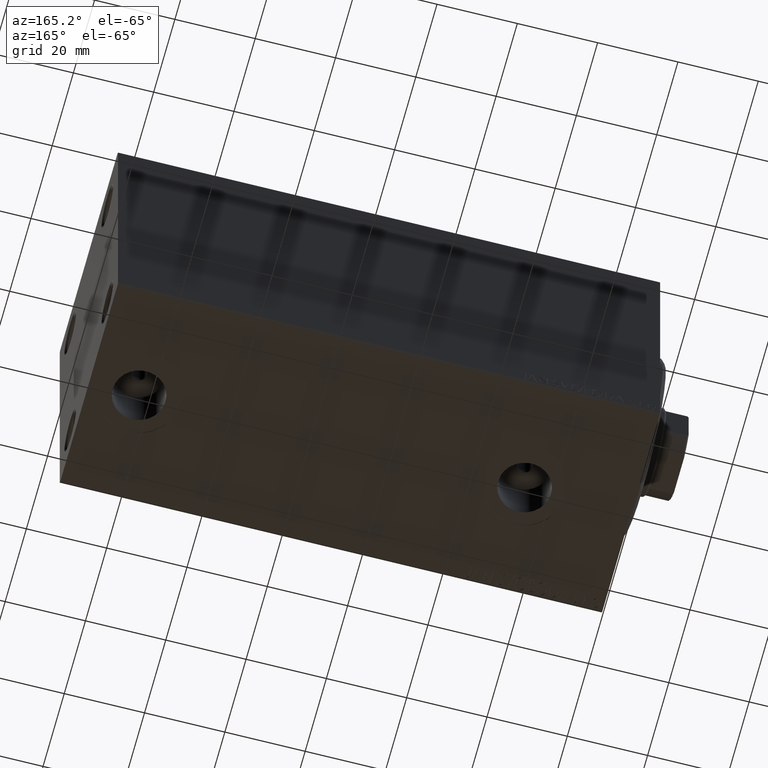
[diagram: clean part render]
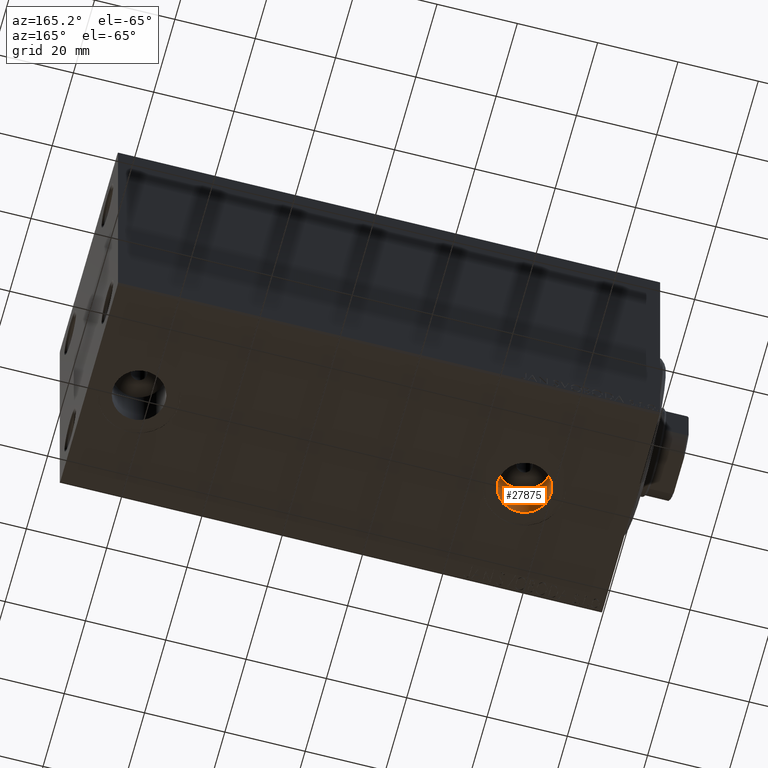
[diagram: same view with one face highlighted and labeled with its STEP entity id]
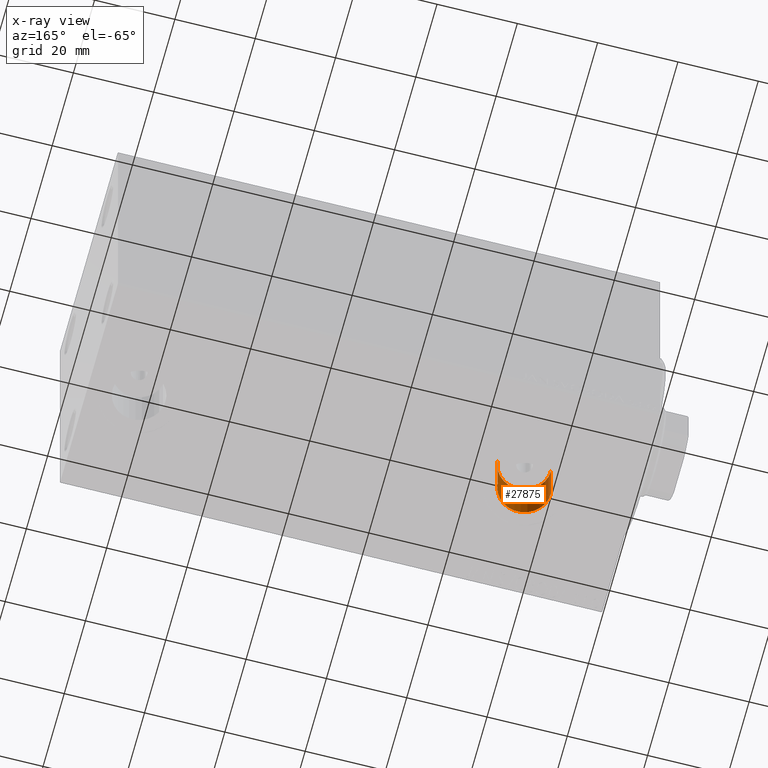
[diagram: x-ray of the same camera — body ghosted, the highlighted face saturated]
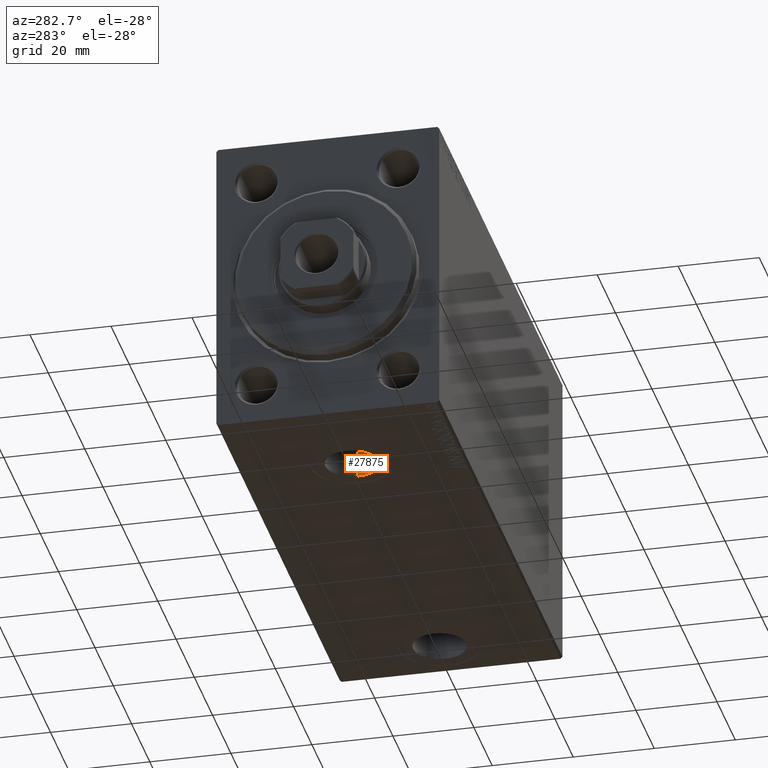
[diagram: same view with one face highlighted and labeled with its STEP entity id]
A machine part, auxiliary view. The second image highlights one B-rep face of the part: STEP entity #27875.
The next image is the same camera in x-ray: the body ghosted, the highlighted face saturated — about 0% of this face is hidden behind the body in this view.
A second angle (auxiliary view) of the same face is appended — the face is thin or edge-on in the first view.
In plain terms, the highlighted cylindrical surface (edge-blend (fillet) strip) has radius 6.58 mm, axis along (-0, -0, -1).
Its self-contained STEP definition (entity closure, byte-faithful):
#90 = DIRECTION ( 'NONE',  ( -1.000000000000000000, 0.000000000000000000, 0.000000000000000000 ) ) ;
#3433 = EDGE_CURVE ( 'NONE', #32096, #45353, #35102, .T. ) ;
#3528 = DIRECTION ( 'NONE',  ( 0.000000000000000000, 0.000000000000000000, -1.000000000000000000 ) ) ;
#6394 = CARTESIAN_POINT ( 'NONE',  ( 26.50000000000000000, -3.461774290897328353E-15, -37.39999999999999858 ) ) ;
#6741 = DIRECTION ( 'NONE',  ( -0.000000000000000000, -0.000000000000000000, -1.000000000000000000 ) ) ;
#7001 = CARTESIAN_POINT ( 'NONE',  ( 26.50000000000000000, -3.461774290897328353E-15, -24.49999999999999289 ) ) ;
#9064 = ORIENTED_EDGE ( 'NONE', *, *, #10738, .T. ) ;
#9179 = VECTOR ( 'NONE', #6741, 1000.000000000000000 ) ;
#9979 = CARTESIAN_POINT ( 'NONE',  ( 19.91999999999999815, -3.461774290897328353E-15, -24.49999999999999289 ) ) ;
#10481 = AXIS2_PLACEMENT_3D ( 'NONE', #30137, #44163, #12590 ) ;
#10738 = EDGE_CURVE ( 'NONE', #18389, #36221, #30925, .T. ) ;
#12442 = CARTESIAN_POINT ( 'NONE',  ( 19.91999999999999815, -3.461774290897328353E-15, -24.49999999999999289 ) ) ;
#12590 = DIRECTION ( 'NONE',  ( -1.000000000000000000, 0.000000000000000000, 0.000000000000000000 ) ) ;
#13608 = CARTESIAN_POINT ( 'NONE',  ( 33.07999999999999829, -2.655956697058369706E-15, -24.49999999999999289 ) ) ;
#13704 = EDGE_CURVE ( 'NONE', #18389, #32096, #29375, .T. ) ;
#14273 = DIRECTION ( 'NONE',  ( -0.000000000000000000, -0.000000000000000000, -1.000000000000000000 ) ) ;
#15453 = EDGE_CURVE ( 'NONE', #36221, #45353, #38239, .T. ) ;
#16405 = ORIENTED_EDGE ( 'NONE', *, *, #15453, .T. ) ;
#18389 = VERTEX_POINT ( 'NONE', #43532 ) ;
#19797 = ORIENTED_EDGE ( 'NONE', *, *, #3433, .F. ) ;
#27875 = ADVANCED_FACE ( 'NONE', ( #37955 ), #33575, .F. ) ;
#29063 = CARTESIAN_POINT ( 'NONE',  ( 33.07999999999999829, -2.655956697058369311E-15, -37.39999999999999858 ) ) ;
#29307 = VECTOR ( 'NONE', #14273, 1000.000000000000000 ) ;
#29375 = CIRCLE ( 'NONE', #38178, 6.580000000000002736 ) ;
#30137 = CARTESIAN_POINT ( 'NONE',  ( 26.50000000000000000, -3.461774290897328353E-15, -24.49999999999999289 ) ) ;
#30925 = LINE ( 'NONE', #13608, #29307 ) ;
#31086 = DIRECTION ( 'NONE',  ( -1.000000000000000000, 0.000000000000000000, 0.000000000000000000 ) ) ;
#32096 = VERTEX_POINT ( 'NONE', #12442 ) ;
#33575 = CYLINDRICAL_SURFACE ( 'NONE', #10481, 6.580000000000002736 ) ;
#35102 = LINE ( 'NONE', #9979, #9179 ) ;
#36221 = VERTEX_POINT ( 'NONE', #29063 ) ;
#36787 = AXIS2_PLACEMENT_3D ( 'NONE', #6394, #41213, #31086 ) ;
#37955 = FACE_OUTER_BOUND ( 'NONE', #40735, .T. ) ;
#38178 = AXIS2_PLACEMENT_3D ( 'NONE', #7001, #3528, #90 ) ;
#38239 = CIRCLE ( 'NONE', #36787, 6.580000000000002736 ) ;
#38568 = CARTESIAN_POINT ( 'NONE',  ( 19.91999999999999815, -3.461774290897328353E-15, -37.39999999999999858 ) ) ;
#40735 = EDGE_LOOP ( 'NONE', ( #44671, #9064, #16405, #19797 ) ) ;
#41213 = DIRECTION ( 'NONE',  ( 0.000000000000000000, 0.000000000000000000, -1.000000000000000000 ) ) ;
#43532 = CARTESIAN_POINT ( 'NONE',  ( 33.07999999999999829, -2.655956697058369311E-15, -24.49999999999999289 ) ) ;
#44163 = DIRECTION ( 'NONE',  ( -0.000000000000000000, -0.000000000000000000, -1.000000000000000000 ) ) ;
#44671 = ORIENTED_EDGE ( 'NONE', *, *, #13704, .F. ) ;
#45353 = VERTEX_POINT ( 'NONE', #38568 ) ;